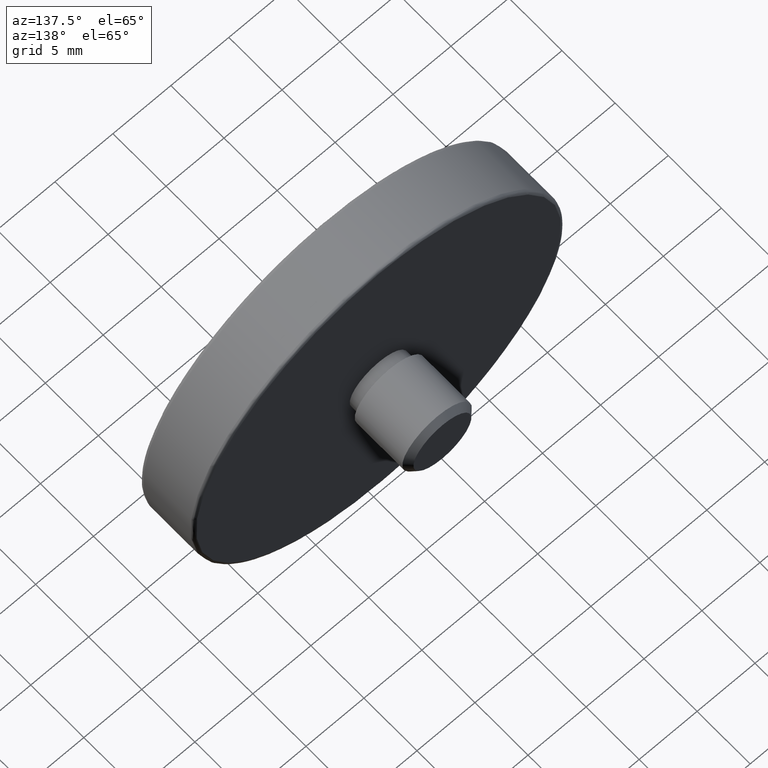
[diagram: clean part render]
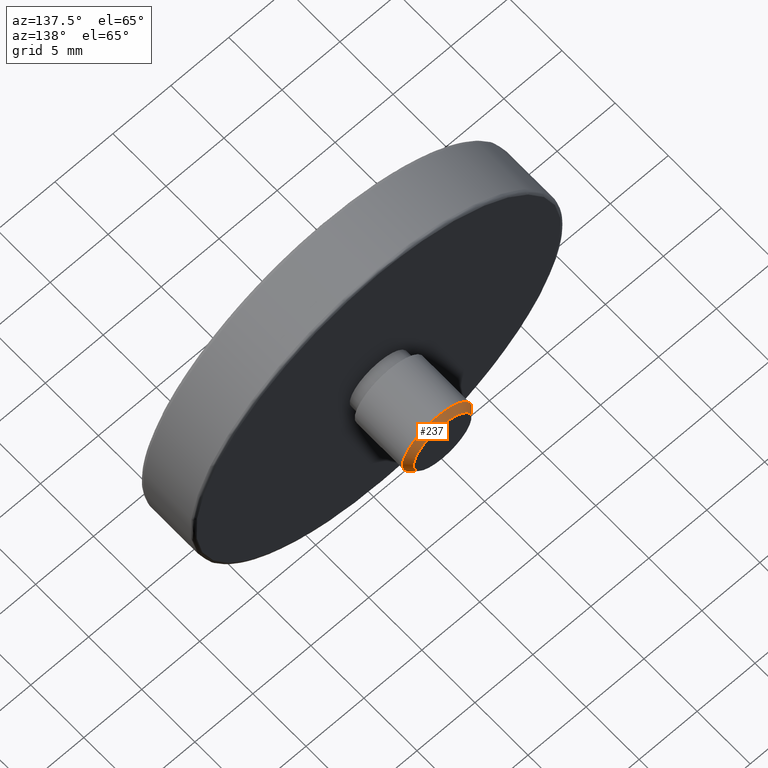
[diagram: same view with one face highlighted and labeled with its STEP entity id]
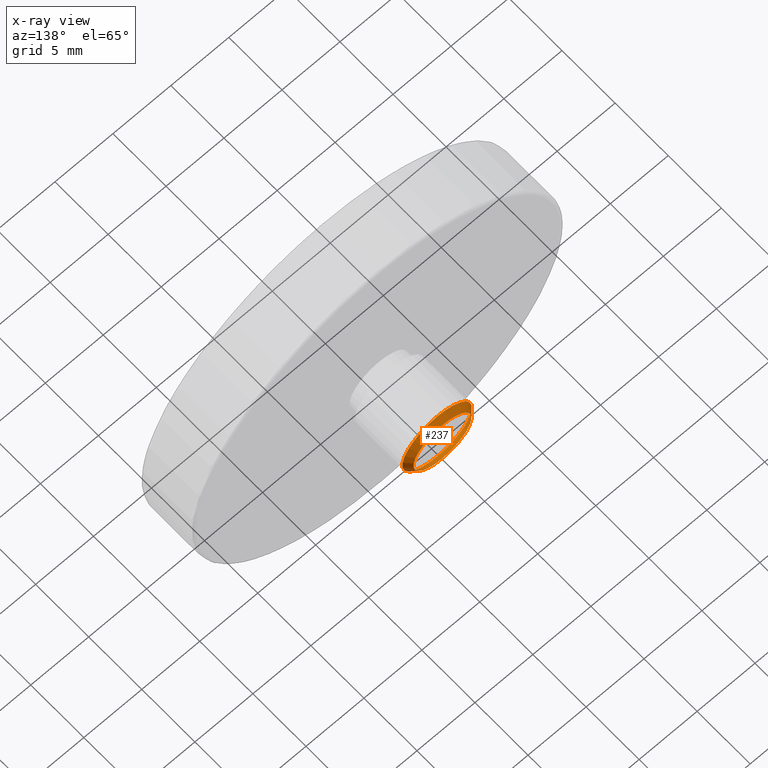
[diagram: x-ray of the same camera — body ghosted, the highlighted face saturated]
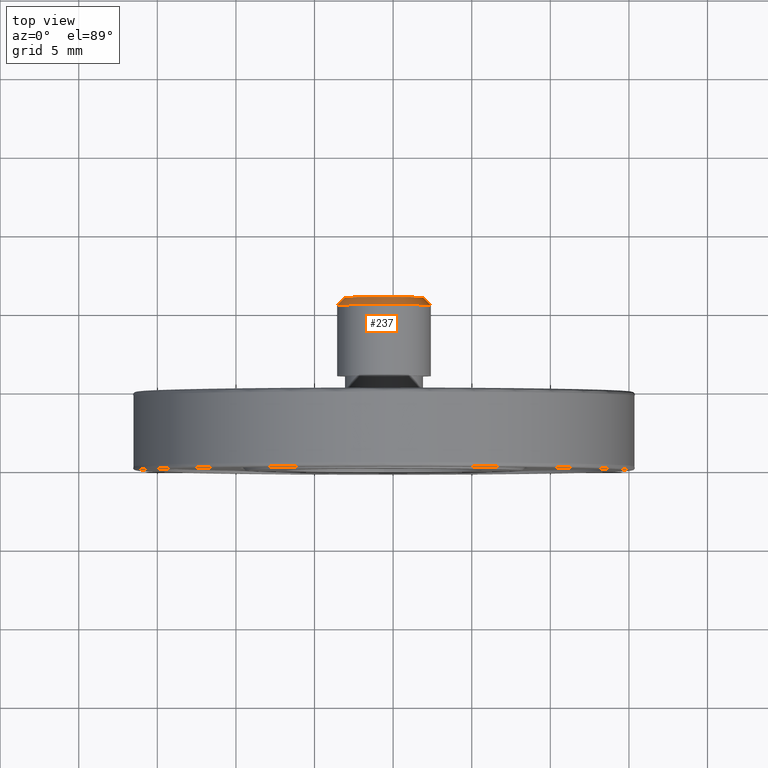
[diagram: same view with one face highlighted and labeled with its STEP entity id]
A machine part, auxiliary view. The second image highlights one B-rep face of the part: STEP entity #237.
The next image is the same camera in x-ray: the body ghosted, the highlighted face saturated — about 0% of this face is hidden behind the body in this view.
A second angle (top view) of the same face is appended — the face is thin or edge-on in the first view.
In plain terms, the highlighted conical surface has half-angle 45 deg.
Its self-contained STEP definition (entity closure, byte-faithful):
#9 = CARTESIAN_POINT ( 'NONE',  ( -0.5807087718688666023, 5.848425263202487123, 32.00000000000000000 ) ) ;
#38 = DIRECTION ( 'NONE',  ( 0.000000000000000000, -1.000000000000000000, 0.000000000000000000 ) ) ;
#48 = CIRCLE ( 'NONE', #1102, 2.499999999997726263 ) ;
#83 = ORIENTED_EDGE ( 'NONE', *, *, #391, .F. ) ;
#170 = CARTESIAN_POINT ( 'NONE',  ( -0.5807087718688666023, 5.848425263202487123, 29.50000000000227374 ) ) ;
#176 = VERTEX_POINT ( 'NONE', #170 ) ;
#178 = EDGE_CURVE ( 'NONE', #176, #176, #48, .T. ) ;
#237 = ADVANCED_FACE ( 'NONE', ( #296, #395 ), #776, .T. ) ;
#272 = VERTEX_POINT ( 'NONE', #659 ) ;
#296 = FACE_BOUND ( 'NONE', #670, .T. ) ;
#318 = DIRECTION ( 'NONE',  ( 0.000000000000000000, 0.000000000000000000, -1.000000000000000000 ) ) ;
#352 = CARTESIAN_POINT ( 'NONE',  ( -0.5807087718688666023, 5.348425263121539430, 32.00000000000000000 ) ) ;
#391 = EDGE_CURVE ( 'NONE', #272, #272, #527, .T. ) ;
#395 = FACE_OUTER_BOUND ( 'NONE', #913, .T. ) ;
#406 = AXIS2_PLACEMENT_3D ( 'NONE', #352, #1053, #856 ) ;
#527 = CIRCLE ( 'NONE', #406, 2.999999999999999112 ) ;
#621 = CARTESIAN_POINT ( 'NONE',  ( -0.5807087718688666023, 5.348425263214310554, 32.00000000000000000 ) ) ;
#659 = CARTESIAN_POINT ( 'NONE',  ( -0.5807087718688666023, 5.348425263121539430, 29.00000000000000000 ) ) ;
#669 = AXIS2_PLACEMENT_3D ( 'NONE', #621, #1075, #982 ) ;
#670 = EDGE_LOOP ( 'NONE', ( #1244 ) ) ;
#776 = CONICAL_SURFACE ( 'NONE', #669, 3.000000000042746251, 0.7853981634542916979 ) ;
#856 = DIRECTION ( 'NONE',  ( 0.000000000000000000, 0.000000000000000000, -1.000000000000000000 ) ) ;
#913 = EDGE_LOOP ( 'NONE', ( #83 ) ) ;
#982 = DIRECTION ( 'NONE',  ( 0.000000000000000000, 0.000000000000000000, -1.000000000000000000 ) ) ;
#1053 = DIRECTION ( 'NONE',  ( -0.000000000000000000, -1.000000000000000000, -0.000000000000000000 ) ) ;
#1075 = DIRECTION ( 'NONE',  ( 0.000000000000000000, -1.000000000000000000, 0.000000000000000000 ) ) ;
#1102 = AXIS2_PLACEMENT_3D ( 'NONE', #9, #38, #318 ) ;
#1244 = ORIENTED_EDGE ( 'NONE', *, *, #178, .T. ) ;